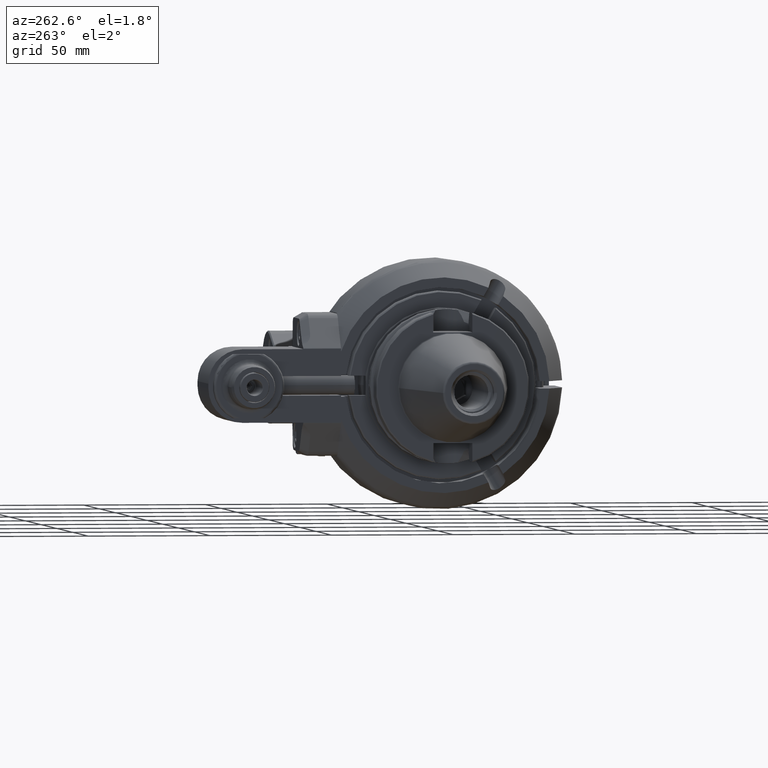
[diagram: clean part render]
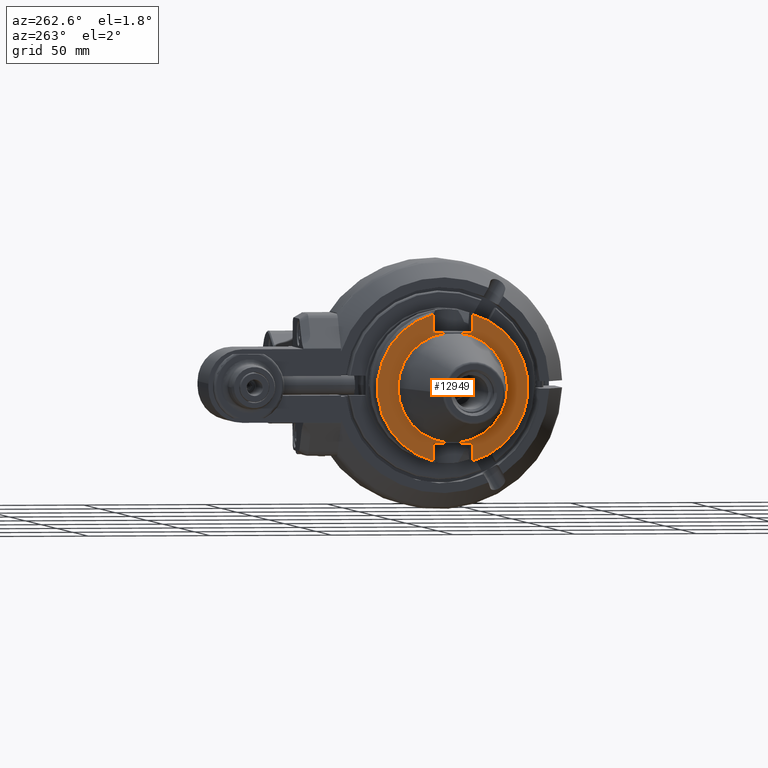
[diagram: same view with one face highlighted and labeled with its STEP entity id]
A machine part, auxiliary view. The second image highlights one B-rep face of the part: STEP entity #12949.
In plain terms, the highlighted planar face has unit normal (1, 0, -0).
Its self-contained STEP definition (entity closure, byte-faithful):
#600=FACE_BOUND('',#4130,.T.);
#1375=LINE('',#22449,#2228);
#1376=LINE('',#22451,#2229);
#1377=LINE('',#22453,#2230);
#1378=LINE('',#22457,#2231);
#1379=LINE('',#22459,#2232);
#1380=LINE('',#22460,#2233);
#2228=VECTOR('',#17275,7.336557918371);
#2229=VECTOR('',#17276,16.1);
#2230=VECTOR('',#17277,7.336557918371);
#2231=VECTOR('',#17280,7.336557918371);
#2232=VECTOR('',#17281,16.1);
#2233=VECTOR('',#17282,7.336557918371);
#3251=FACE_OUTER_BOUND('',#4129,.T.);
#4129=EDGE_LOOP('',(#10799,#10800,#10801,#10802,#10803,#10804,#10805,#10806));
#4130=EDGE_LOOP('',(#10807));
#4877=CIRCLE('',#14262,22.525);
#4879=CIRCLE('',#14265,31.);
#4880=CIRCLE('',#14266,31.);
#5909=VERTEX_POINT('',#22441);
#5910=VERTEX_POINT('',#22445);
#5911=VERTEX_POINT('',#22446);
#5912=VERTEX_POINT('',#22448);
#5913=VERTEX_POINT('',#22450);
#5914=VERTEX_POINT('',#22452);
#5915=VERTEX_POINT('',#22454);
#5916=VERTEX_POINT('',#22456);
#5917=VERTEX_POINT('',#22458);
#7604=EDGE_CURVE('',#5909,#5909,#4877,.T.);
#7606=EDGE_CURVE('',#5910,#5911,#4879,.T.);
#7607=EDGE_CURVE('',#5912,#5911,#1375,.T.);
#7608=EDGE_CURVE('',#5912,#5913,#1376,.T.);
#7609=EDGE_CURVE('',#5914,#5913,#1377,.T.);
#7610=EDGE_CURVE('',#5914,#5915,#4880,.T.);
#7611=EDGE_CURVE('',#5916,#5915,#1378,.T.);
#7612=EDGE_CURVE('',#5917,#5916,#1379,.T.);
#7613=EDGE_CURVE('',#5910,#5917,#1380,.T.);
#10799=ORIENTED_EDGE('',*,*,#7606,.T.);
#10800=ORIENTED_EDGE('',*,*,#7607,.F.);
#10801=ORIENTED_EDGE('',*,*,#7608,.T.);
#10802=ORIENTED_EDGE('',*,*,#7609,.F.);
#10803=ORIENTED_EDGE('',*,*,#7610,.T.);
#10804=ORIENTED_EDGE('',*,*,#7611,.F.);
#10805=ORIENTED_EDGE('',*,*,#7612,.F.);
#10806=ORIENTED_EDGE('',*,*,#7613,.F.);
#10807=ORIENTED_EDGE('',*,*,#7604,.T.);
#12291=PLANE('',#14264);
#12949=ADVANCED_FACE('',(#3251,#600),#12291,.F.);
#14262=AXIS2_PLACEMENT_3D('',#22442,#17267,#17268);
#14264=AXIS2_PLACEMENT_3D('',#22444,#17271,#17272);
#14265=AXIS2_PLACEMENT_3D('',#22447,#17273,#17274);
#14266=AXIS2_PLACEMENT_3D('',#22455,#17278,#17279);
#17267=DIRECTION('center_axis',(1.,0.,0.));
#17268=DIRECTION('ref_axis',(0.,1.,0.));
#17271=DIRECTION('center_axis',(1.,0.,0.));
#17272=DIRECTION('ref_axis',(0.,-1.,0.));
#17273=DIRECTION('center_axis',(-1.,0.,0.));
#17274=DIRECTION('ref_axis',(0.,-0.259677419354791,-0.965695416721668));
#17275=DIRECTION('',(0.,0.,1.));
#17276=DIRECTION('',(0.,1.,0.));
#17277=DIRECTION('',(0.,0.,-1.));
#17278=DIRECTION('center_axis',(-1.,0.,0.));
#17279=DIRECTION('ref_axis',(0.,0.259677419354791,0.965695416721668));
#17280=DIRECTION('',(0.,0.,-1.));
#17281=DIRECTION('',(0.,1.,0.));
#17282=DIRECTION('',(0.,0.,1.));
#22441=CARTESIAN_POINT('',(-72.,22.525,1.448071505443E-14));
#22442=CARTESIAN_POINT('Origin',(-72.,0.,0.));
#22444=CARTESIAN_POINT('Origin',(-72.,-22.675,0.));
#22445=CARTESIAN_POINT('',(-72.,-8.05,-29.93655791837));
#22446=CARTESIAN_POINT('',(-72.,-8.05,29.93655791837));
#22447=CARTESIAN_POINT('Origin',(-72.,0.,0.));
#22448=CARTESIAN_POINT('',(-72.,-8.05,22.6));
#22449=CARTESIAN_POINT('',(-72.,-8.05,22.6));
#22450=CARTESIAN_POINT('',(-72.,8.05,22.6));
#22451=CARTESIAN_POINT('',(-72.,-8.05,22.6));
#22452=CARTESIAN_POINT('',(-72.,8.05,29.93655791837));
#22453=CARTESIAN_POINT('',(-72.,8.05,29.93655791837));
#22454=CARTESIAN_POINT('',(-72.,8.05,-29.93655791837));
#22455=CARTESIAN_POINT('Origin',(-72.,0.,0.));
#22456=CARTESIAN_POINT('',(-72.,8.05,-22.6));
#22457=CARTESIAN_POINT('',(-72.,8.05,-22.6));
#22458=CARTESIAN_POINT('',(-72.,-8.05,-22.6));
#22459=CARTESIAN_POINT('',(-72.,-8.05,-22.6));
#22460=CARTESIAN_POINT('',(-72.,-8.05,-29.93655791837));